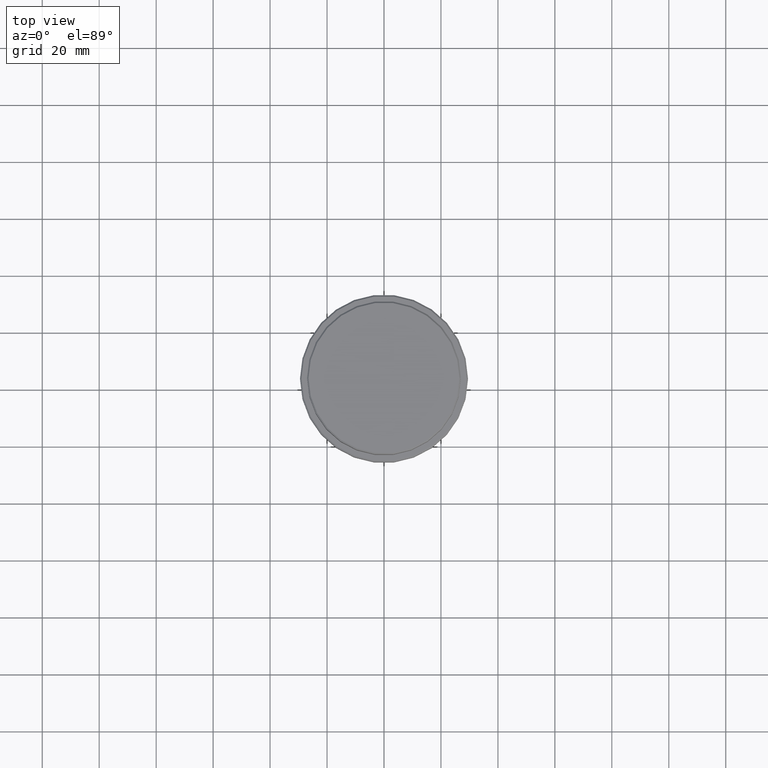
[diagram: clean part render]
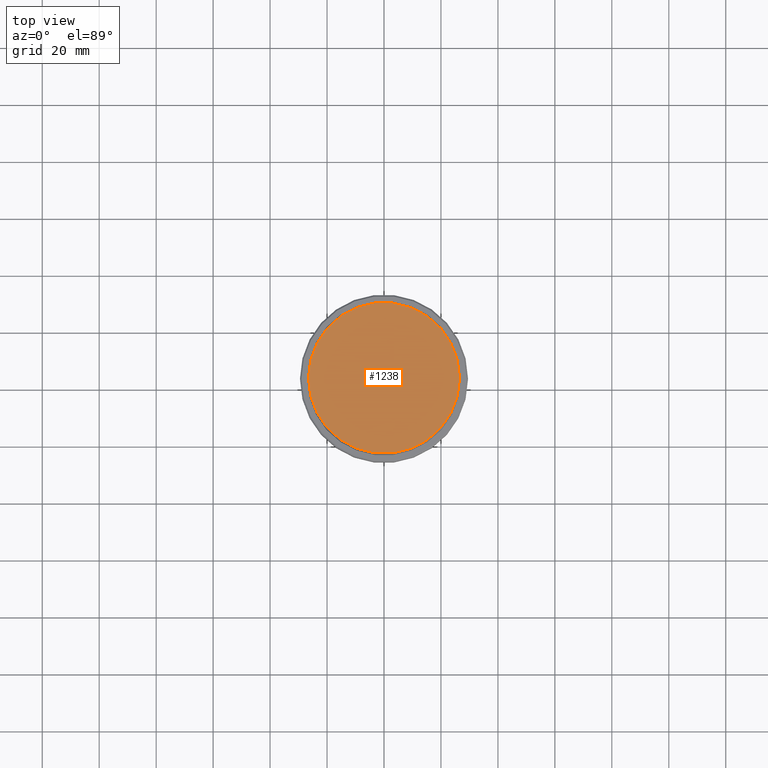
[diagram: same view with one face highlighted and labeled with its STEP entity id]
A machine part, top view. The second image highlights one B-rep face of the part: STEP entity #1238.
In plain terms, the highlighted planar face has unit normal (0, -0, 1).
Its self-contained STEP definition (entity closure, byte-faithful):
#53 = CIRCLE ( 'NONE', #852, 26.49999999999996803 ) ;
#89 = ORIENTED_EDGE ( 'NONE', *, *, #1028, .T. ) ;
#100 = CARTESIAN_POINT ( 'NONE',  ( 0.000000000000000000, 0.000000000000000000, 0.000000000000000000 ) ) ;
#106 = AXIS2_PLACEMENT_3D ( 'NONE', #100, #745, #632 ) ;
#131 = AXIS2_PLACEMENT_3D ( 'NONE', #282, #271, #1359 ) ;
#167 = VERTEX_POINT ( 'NONE', #243 ) ;
#193 = FACE_OUTER_BOUND ( 'NONE', #1048, .T. ) ;
#243 = CARTESIAN_POINT ( 'NONE',  ( 26.49999999999996803, 3.275930187719167974E-15, 0.000000000000000000 ) ) ;
#268 = VERTEX_POINT ( 'NONE', #1316 ) ;
#271 = DIRECTION ( 'NONE',  ( 0.000000000000000000, -0.000000000000000000, 1.000000000000000000 ) ) ;
#282 = CARTESIAN_POINT ( 'NONE',  ( 0.000000000000000000, 0.000000000000000000, 0.000000000000000000 ) ) ;
#345 = DIRECTION ( 'NONE',  ( -0.000000000000000000, -0.000000000000000000, 1.000000000000000000 ) ) ;
#482 = ORIENTED_EDGE ( 'NONE', *, *, #651, .T. ) ;
#632 = DIRECTION ( 'NONE',  ( 1.000000000000000000, 0.000000000000000000, 0.000000000000000000 ) ) ;
#651 = EDGE_CURVE ( 'NONE', #268, #167, #53, .T. ) ;
#683 = CARTESIAN_POINT ( 'NONE',  ( 0.000000000000000000, 0.000000000000000000, 0.000000000000000000 ) ) ;
#745 = DIRECTION ( 'NONE',  ( -0.000000000000000000, -0.000000000000000000, 1.000000000000000000 ) ) ;
#806 = CIRCLE ( 'NONE', #106, 26.49999999999996803 ) ;
#807 = PLANE ( 'NONE',  #131 ) ;
#852 = AXIS2_PLACEMENT_3D ( 'NONE', #683, #345, #1325 ) ;
#1028 = EDGE_CURVE ( 'NONE', #167, #268, #806, .T. ) ;
#1048 = EDGE_LOOP ( 'NONE', ( #482, #89 ) ) ;
#1238 = ADVANCED_FACE ( 'NONE', ( #193 ), #807, .T. ) ;
#1316 = CARTESIAN_POINT ( 'NONE',  ( -26.49999999999996803, 0.000000000000000000, 0.000000000000000000 ) ) ;
#1325 = DIRECTION ( 'NONE',  ( 1.000000000000000000, 0.000000000000000000, 0.000000000000000000 ) ) ;
#1359 = DIRECTION ( 'NONE',  ( 1.000000000000000000, 0.000000000000000000, 0.000000000000000000 ) ) ;